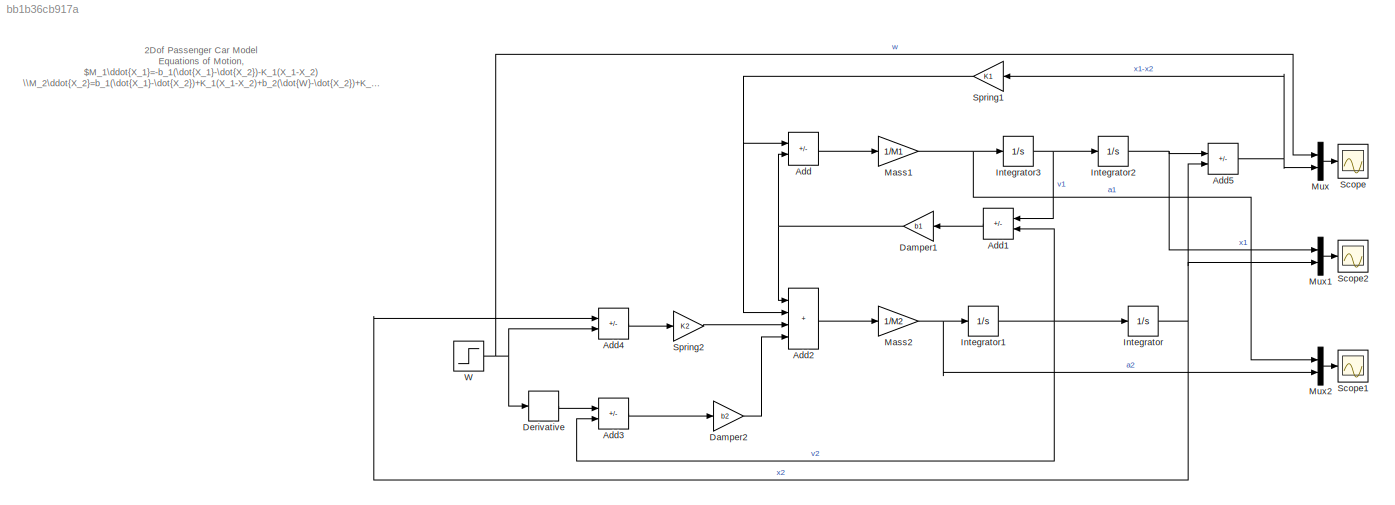
MODEL slx_bb1b36cb917a
KIND model
CONFIG AbsTol = auto
CONFIG EnableMultiTasking = off
CONFIG FixedStep = auto
CONFIG MaxStep = auto
CONFIG MinStep = auto
CONFIG PreLoadFcn = clearvars;\nM1=300;\nM2=30;\nK1=10000;\nK2=50000;\nb1=100;\nb2=30000;
CONFIG RelTol = 1e-3
CONFIG SampleTimeConstraint = Unconstrained
CONFIG SolverName = VariableStepAuto
CONFIG StartTime = 0.0
CONFIG StopTime = 30
BLOCK [Sum] Add 
  IconShape = rectangular
  Inputs = --
  Ports = [2, 1]
BLOCK [Sum] Add1 
  IconShape = rectangular
  Inputs = +-
  Ports = [2, 1]
BLOCK [Sum] Add2 
  IconShape = rectangular
  Inputs = ++++
  Ports = [4, 1]
BLOCK [Sum] Add3 
  IconShape = rectangular
  Inputs = +-
  Ports = [2, 1]
BLOCK [Sum] Add4 
  IconShape = rectangular
  Inputs = -+
  Ports = [2, 1]
BLOCK [Sum] Add5 
  IconShape = rectangular
  Inputs = +-
  Ports = [2, 1]
BLOCK [Gain] Damper1
  Gain = b1
BLOCK [Gain] Damper2
  Gain = b2
BLOCK [Derivative] Derivative 
BLOCK [Integrator] Integrator 
  Ports = [1, 1]
BLOCK [Integrator] Integrator1 
  Ports = [1, 1]
BLOCK [Integrator] Integrator2 
  Ports = [1, 1]
BLOCK [Integrator] Integrator3 
  Ports = [1, 1]
BLOCK [Gain] Mass1
  Gain = 1/M1
BLOCK [Gain] Mass2
  Gain = 1/M2
BLOCK [Mux] Mux
  DisplayOption = bar
  Inputs = 2
  Ports = [2, 1]
BLOCK [Mux] Mux1
  DisplayOption = bar
  Inputs = 2
  Ports = [2, 1]
BLOCK [Mux] Mux2
  DisplayOption = bar
  Inputs = 2
  Ports = [2, 1]
BLOCK [Scope] Scope 
  Floating = off
  NumInputPorts = 1
  Ports = [1]
  ScopeSpecificationString = Simulink.scopes.TimeScopeBlockCfg('CurrentConfiguration', extmgr.ConfigurationSet(extmgr.Configuration('Core','General UI',true),extmgr.Configuration('Core','Source UI',true),extmgr.Configuration('Sources','WiredSimulink',true),extmgr.Configuration('Visuals','Time Domain',true,'SerializedDisplays',{struct('MinYLimReal','-1.05775','MaxYLimReal','1.22864','YLabelReal','','MinYLimMag','0.00000','MaxY...<+1378ch>
BLOCK [Scope] Scope1 
  Floating = off
  NumInputPorts = 1
  Ports = [1]
  ScopeSpecificationString = Simulink.scopes.TimeScopeBlockCfg('CurrentConfiguration', extmgr.ConfigurationSet(extmgr.Configuration('Core','General UI',true),extmgr.Configuration('Core','Source UI',true),extmgr.Configuration('Sources','WiredSimulink',true,'DataLoggingVariableName','ScopeData2'),extmgr.Configuration('Visuals','Time Domain',true,'SerializedDisplays',{struct('MinYLimReal','-55.50417','MaxYLimReal','376.5375','YL...<+1396ch>
BLOCK [Scope] Scope2 
  Floating = off
  NumInputPorts = 1
  Ports = [1]
  ScopeSpecificationString = Simulink.scopes.TimeScopeBlockCfg('CurrentConfiguration', extmgr.ConfigurationSet(extmgr.Configuration('Core','General UI',true),extmgr.Configuration('Core','Source UI',true),extmgr.Configuration('Sources','WiredSimulink',true,'DataLoggingVariableName','ScopeData1'),extmgr.Configuration('Visuals','Time Domain',true,'SerializedDisplays',{struct('MinYLimReal','-0.24006','MaxYLimReal','2.16056','YLab...<+1390ch>
BLOCK [Gain] Spring1
  Gain = K1
BLOCK [Gain] Spring2
  Gain = K2
BLOCK [Step] W
  SampleTime = 0.05
ANNOTATION (root): 2Dof Passenger Car Model Equations of Motion, $M_1\ddot{X_1}=-b_1(\dot{X_1}-\dot{X_2})-K_1(X_1-X_2) \\M_2\ddot{X_2}=b_1(\dot{X_1}-\dot{X_2})+K_1(X_1-X_2)+b_2(\dot{W}-\dot{X_2})+K_2(W-X_2)$
LINE Add :1 -> Mass1:1
LINE Add1 :1 -> Damper1:1
LINE Add2 :1 -> Mass2:1
LINE Add3 :1 -> Damper2:1
LINE Add4 :1 -> Spring2:1
NET Add5 :1 -> Mux:2, Spring1:1
NET Damper1:1 -> Add :2, Add2 :1
LINE Damper2:1 -> Add2 :4
LINE Derivative :1 -> Add3 :1
NET Integrator :1 -> Add4 :1, Add5 :2, Mux1:2
NET Integrator1 :1 -> Add1 :2, Add3 :2, Integrator :1
NET Integrator2 :1 -> Add5 :1, Mux1:1
NET Integrator3 :1 -> Add1 :1, Integrator2 :1
NET Mass1:1 -> Integrator3 :1, Mux2:1
NET Mass2:1 -> Integrator1 :1, Mux2:2
LINE Mux1:1 -> Scope2 :1
LINE Mux2:1 -> Scope1 :1
LINE Mux:1 -> Scope :1
NET Spring1:1 -> Add :1, Add2 :2
LINE Spring2:1 -> Add2 :3
NET W:1 -> Add4 :2, Derivative :1, Mux:1
note: NET lines group one-source signal fan-out (src -> all destinations, sorted); 1:1 wires keep LINE
